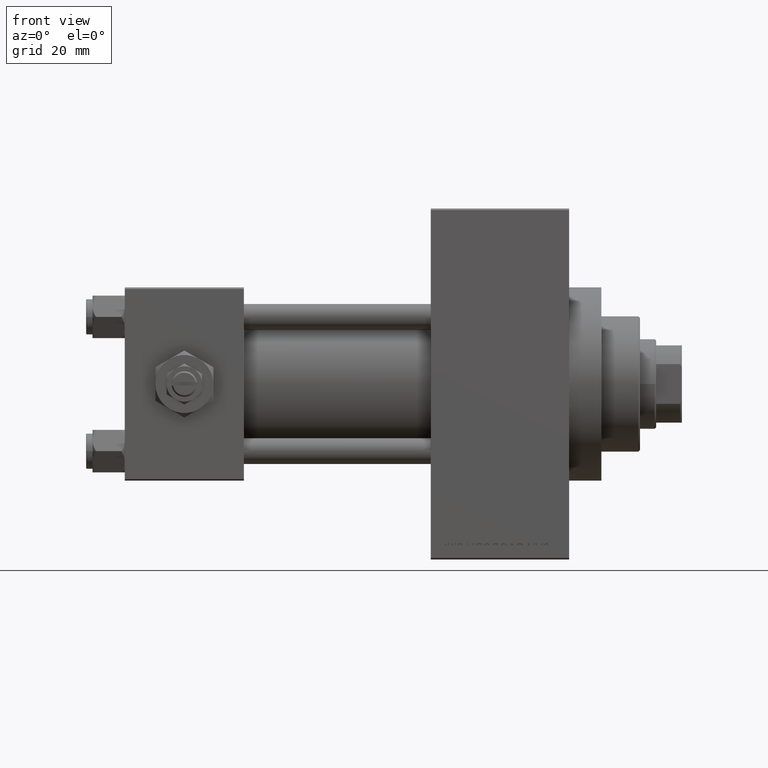
[diagram: clean part render]
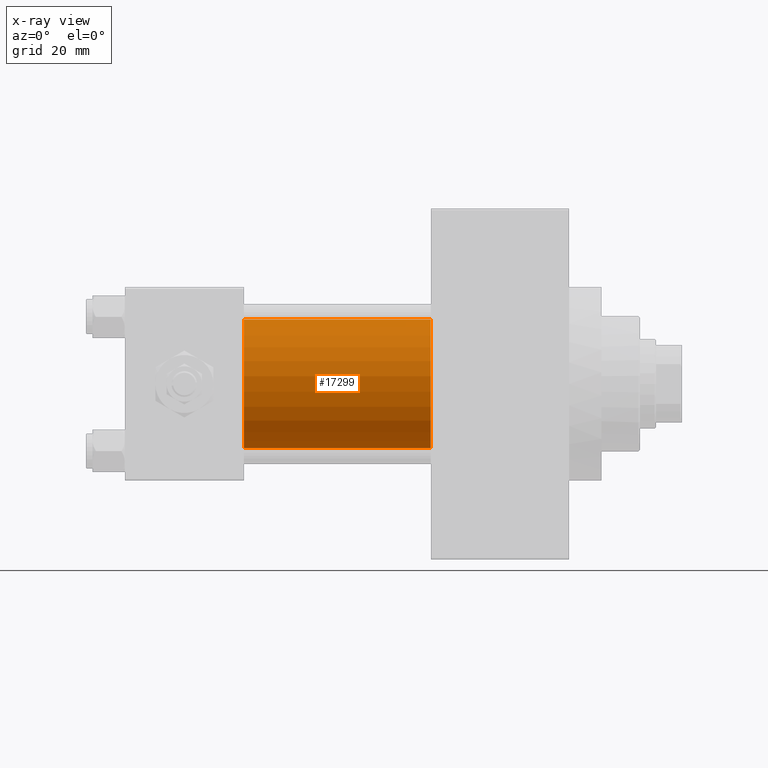
[diagram: x-ray — body ghosted, one internal face saturated and labeled with its STEP entity id]
A machine part, front view, then the same camera in x-ray: the body is ghosted and one INTERNAL B-rep face — a face not visible from any outside direction — is saturated and labeled: STEP entity #17299.
In plain terms, the highlighted cylindrical surface (partial cylindrical patch) has radius 20 mm, axis along (-1, -0, -0).
Its self-contained STEP definition (entity closure, byte-faithful):
#336 = CARTESIAN_POINT ( 'NONE',  ( 95.00000000000000000, -2.602085213965210642E-15, 20.00000000000000000 ) ) ;
#1806 = EDGE_LOOP ( 'NONE', ( #20559, #20328, #2111, #5842 ) ) ;
#2111 = ORIENTED_EDGE ( 'NONE', *, *, #40270, .F. ) ;
#2315 = VERTEX_POINT ( 'NONE', #33094 ) ;
#3581 = CYLINDRICAL_SURFACE ( 'NONE', #46864, 20.00000000000000000 ) ;
#3715 = EDGE_CURVE ( 'NONE', #42660, #35616, #46990, .T. ) ;
#4535 = CARTESIAN_POINT ( 'NONE',  ( 95.00000000000000000, -2.602085213965210642E-15, 20.00000000000000000 ) ) ;
#5842 = ORIENTED_EDGE ( 'NONE', *, *, #24762, .F. ) ;
#6489 = VERTEX_POINT ( 'NONE', #4535 ) ;
#8955 = DIRECTION ( 'NONE',  ( 0.000000000000000000, 0.000000000000000000, -1.000000000000000000 ) ) ;
#9842 = VECTOR ( 'NONE', #26820, 1000.000000000000000 ) ;
#10346 = AXIS2_PLACEMENT_3D ( 'NONE', #42728, #43220, #39241 ) ;
#11612 = CIRCLE ( 'NONE', #21828, 20.00000000000000000 ) ;
#12213 = LINE ( 'NONE', #336, #9842 ) ;
#14952 = DIRECTION ( 'NONE',  ( 0.000000000000000000, 0.000000000000000000, 1.000000000000000000 ) ) ;
#15061 = CIRCLE ( 'NONE', #10346, 20.00000000000000000 ) ;
#15430 = FACE_OUTER_BOUND ( 'NONE', #1806, .T. ) ;
#17299 = ADVANCED_FACE ( 'NONE', ( #15430 ), #3581, .F. ) ;
#19966 = CARTESIAN_POINT ( 'NONE',  ( 37.00000000000000000, -1.527916156705046464E-16, -20.00000000000000000 ) ) ;
#20328 = ORIENTED_EDGE ( 'NONE', *, *, #3715, .T. ) ;
#20559 = ORIENTED_EDGE ( 'NONE', *, *, #36584, .T. ) ;
#21828 = AXIS2_PLACEMENT_3D ( 'NONE', #23769, #23262, #8955 ) ;
#23262 = DIRECTION ( 'NONE',  ( 1.000000000000000000, 0.000000000000000000, 0.000000000000000000 ) ) ;
#23769 = CARTESIAN_POINT ( 'NONE',  ( 37.00000000000000000, -2.602085213965210642E-15, 0.000000000000000000 ) ) ;
#24762 = EDGE_CURVE ( 'NONE', #6489, #2315, #12213, .T. ) ;
#26820 = DIRECTION ( 'NONE',  ( -1.000000000000000000, -0.000000000000000000, -0.000000000000000000 ) ) ;
#27155 = CARTESIAN_POINT ( 'NONE',  ( 95.00000000000000000, -1.527916156705046464E-16, -20.00000000000000000 ) ) ;
#33094 = CARTESIAN_POINT ( 'NONE',  ( 37.00000000000000000, -2.602085213965210642E-15, 20.00000000000000000 ) ) ;
#33164 = VECTOR ( 'NONE', #42260, 1000.000000000000000 ) ;
#34006 = DIRECTION ( 'NONE',  ( -1.000000000000000000, -0.000000000000000000, -0.000000000000000000 ) ) ;
#35616 = VERTEX_POINT ( 'NONE', #19966 ) ;
#36584 = EDGE_CURVE ( 'NONE', #6489, #42660, #15061, .T. ) ;
#39241 = DIRECTION ( 'NONE',  ( 0.000000000000000000, 0.000000000000000000, -1.000000000000000000 ) ) ;
#39404 = CARTESIAN_POINT ( 'NONE',  ( 95.00000000000000000, -1.527916156705046464E-16, -20.00000000000000000 ) ) ;
#40270 = EDGE_CURVE ( 'NONE', #2315, #35616, #11612, .T. ) ;
#40955 = CARTESIAN_POINT ( 'NONE',  ( 95.00000000000000000, -2.602085213965210642E-15, 0.000000000000000000 ) ) ;
#42260 = DIRECTION ( 'NONE',  ( -1.000000000000000000, -0.000000000000000000, -0.000000000000000000 ) ) ;
#42660 = VERTEX_POINT ( 'NONE', #39404 ) ;
#42728 = CARTESIAN_POINT ( 'NONE',  ( 95.00000000000000000, -2.602085213965210642E-15, 0.000000000000000000 ) ) ;
#43220 = DIRECTION ( 'NONE',  ( 1.000000000000000000, 0.000000000000000000, 0.000000000000000000 ) ) ;
#46864 = AXIS2_PLACEMENT_3D ( 'NONE', #40955, #34006, #14952 ) ;
#46990 = LINE ( 'NONE', #27155, #33164 ) ;